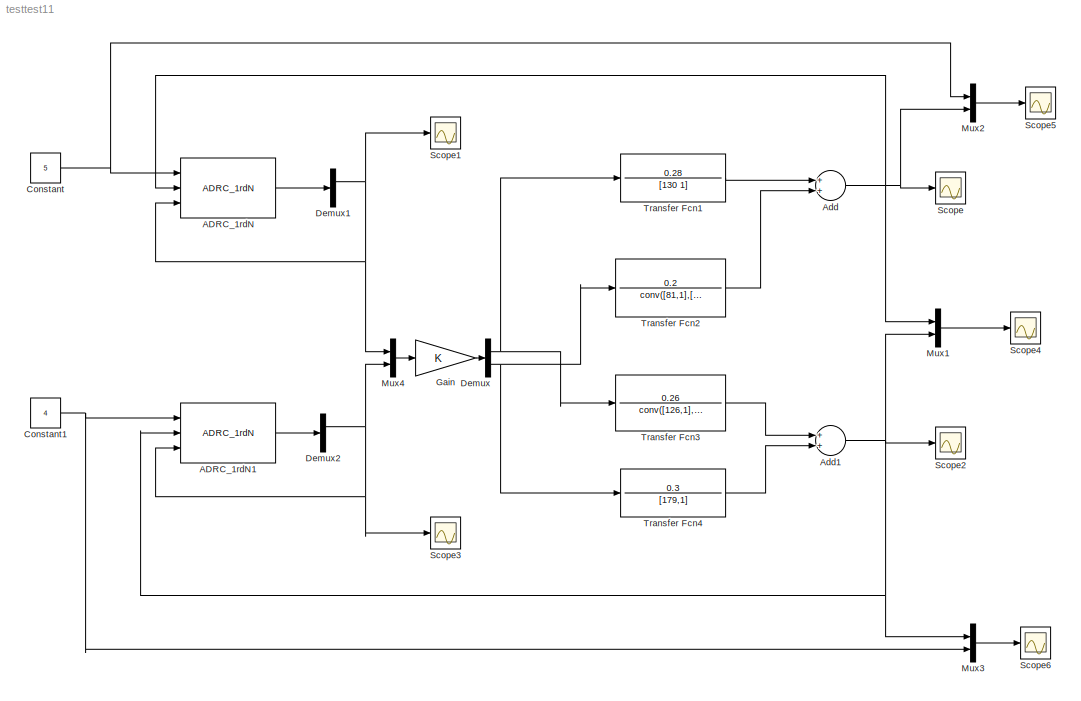
MODEL testtest11
KIND model
BLOCK [Reference] ADRC_1rdN  REF=ADRC/ADRC/ADRC_1rd/ADRC_1rdN
  B01 = 10
  B02 = 200
  FunctionWithSeparateData = off
  GeneratePreprocessorConditionals = off
  Ports = [3, 1]
  RT = 500
  RTWMemSecDataConstants = Inherit from model
  RTWMemSecDataInternal = Inherit from model
  RTWMemSecDataParameters = Inherit from model
  RTWMemSecFuncExecute = Inherit from model
  RTWMemSecFuncInitTerm = Inherit from model
  SID = 33
  ShowPortLabels = FromPortIcon
  SourceBlock = ADRC/ADRC/ADRC_1rd/ADRC_1rdN
  SourceType = Unknown
  SystemSampleTime = -1
  h = 0.1
  r = 0.5
BLOCK [Reference] ADRC_1rdN1  REF=ADRC/ADRC/ADRC_1rd/ADRC_1rdN
  B01 = 10
  B02 = 200
  FunctionWithSeparateData = off
  GeneratePreprocessorConditionals = off
  Ports = [3, 1]
  RT = 500
  RTWMemSecDataConstants = Inherit from model
  RTWMemSecDataInternal = Inherit from model
  RTWMemSecDataParameters = Inherit from model
  RTWMemSecFuncExecute = Inherit from model
  RTWMemSecFuncInitTerm = Inherit from model
  SID = 34
  ShowPortLabels = FromPortIcon
  SourceBlock = ADRC/ADRC/ADRC_1rd/ADRC_1rdN
  SourceType = Unknown
  SystemSampleTime = -1
  h = 0.1
  r = 0.5
BLOCK [Sum] Add
  InputSameDT = off
  OutDataTypeStr = Inherit: Inherit via internal rule
  Ports = [2, 1]
  SID = 28
  SaturateOnIntegerOverflow = off
BLOCK [Sum] Add1
  InputSameDT = off
  OutDataTypeStr = Inherit: Inherit via internal rule
  Ports = [2, 1]
  SID = 30
  SaturateOnIntegerOverflow = off
BLOCK [Constant] Constant
  SID = 3
  Value = 5
BLOCK [Constant] Constant1
  SID = 31
  Value = 4
BLOCK [Demux] Demux
  DisplayOption = bar
  Outputs = 2
  Ports = [1, 2]
  SID = 25
BLOCK [Demux] Demux1
  DisplayOption = bar
  Outputs = 2
  Ports = [1, 2]
  SID = 35
BLOCK [Demux] Demux2
  DisplayOption = bar
  Outputs = 2
  Ports = [1, 2]
  SID = 36
BLOCK [Gain] Gain
  Gain = K
  Multiplication = Matrix(K*u)
  OutDataTypeStr = Inherit: Inherit via internal rule
  ParamDataTypeStr = Inherit: Inherit via internal rule
  SID = 26
  SaturateOnIntegerOverflow = off
BLOCK [Mux] Mux1
  DisplayOption = bar
  Inputs = 2
  Ports = [2, 1]
  SID = 49
BLOCK [Mux] Mux2
  DisplayOption = bar
  Inputs = 2
  Ports = [2, 1]
  SID = 52
BLOCK [Mux] Mux3
  DisplayOption = bar
  Inputs = 2
  Ports = [2, 1]
  SID = 54
BLOCK [Mux] Mux4
  DisplayOption = bar
  Inputs = 2
  Ports = [2, 1]
  SID = 27
BLOCK [Scope] Scope
  DataFormat = Array
  Floating = off
  LimitDataPoints = off
  NumInputPorts = 1
  Ports = [1]
  SID = 4
  SampleTime = 0
  TimeRange = 1000
  YMax = 1.4e+236
  YMin = -2e+235
BLOCK [Scope] Scope1
  DataFormat = Array
  Floating = off
  LimitDataPoints = off
  NumInputPorts = 1
  Ports = [1]
  SID = 5
  SampleTime = 0
  SaveName = ScopeData1
  YMax = 250
  YMin = 0
BLOCK [Scope] Scope2
  DataFormat = Array
  Floating = off
  LimitDataPoints = off
  NumInputPorts = 1
  Ports = [1]
  SID = 29
  SampleTime = 0
  SaveName = ScopeData2
  YMax = 10.25
  YMin = 5.25
BLOCK [Scope] Scope3
  DataFormat = Array
  Floating = off
  LimitDataPoints = off
  NumInputPorts = 1
  Ports = [1]
  SID = 48
  SampleTime = 0
  SaveName = ScopeData3
  YMax = 250
  YMin = 0
BLOCK [Scope] Scope4
  DataFormat = Array
  Floating = off
  LimitDataPoints = off
  NumInputPorts = 1
  Ports = [1]
  SID = 50
  SampleTime = 0
  SaveName = ScopeData4
  TimeRange = 1000
  YMax = 1.4e+236
  YMin = -2e+235
BLOCK [Scope] Scope5
  DataFormat = Array
  Floating = off
  LimitDataPoints = off
  NumInputPorts = 1
  Ports = [1]
  SID = 51
  SampleTime = 0
  SaveName = ScopeData5
  TimeRange = 1000
  YMax = 1.4e+236
  YMin = -2e+235
BLOCK [Scope] Scope6
  DataFormat = Array
  Floating = off
  LimitDataPoints = off
  NumInputPorts = 1
  Ports = [1]
  SID = 53
  SampleTime = 0
  SaveName = ScopeData6
  TimeRange = 1000
  YMax = 1.4e+236
  YMin = -2e+235
BLOCK [TransferFcn] Transfer Fcn1
  Denominator = [130 1]
  Numerator = 0.28
  SID = 43
BLOCK [TransferFcn] Transfer Fcn2
  Denominator = conv([81,1],[12,1])
  Numerator = 0.2
  SID = 47
BLOCK [TransferFcn] Transfer Fcn3
  Denominator = conv([126,1],[11,1])
  Numerator = 0.26
  SID = 45
BLOCK [TransferFcn] Transfer Fcn4
  Denominator = [179,1]
  Numerator = 0.3
  SID = 46
LINE ADRC_1rdN1:1 -> Demux2:1
LINE ADRC_1rdN:1 -> Demux1:1
NET Add1:1 -> ADRC_1rdN1:2, Mux1:2, Mux3:1, Scope2:1
NET Add:1 -> ADRC_1rdN:2, Mux1:1, Mux2:2, Scope:1
NET Constant1:1 -> ADRC_1rdN1:1, Mux3:2
NET Constant:1 -> ADRC_1rdN:1, Mux2:1
NET Demux1:1 -> ADRC_1rdN:3, Mux4:1, Scope1:1
NET Demux2:1 -> ADRC_1rdN1:3, Mux4:2, Scope3:1
NET Demux:1 -> Transfer Fcn1:1, Transfer Fcn3:1
NET Demux:2 -> Transfer Fcn2:1, Transfer Fcn4:1
LINE Gain:1 -> Demux:1
LINE Mux1:1 -> Scope4:1
LINE Mux2:1 -> Scope5:1
LINE Mux3:1 -> Scope6:1
LINE Mux4:1 -> Gain:1
LINE Transfer Fcn1:1 -> Add:1
LINE Transfer Fcn2:1 -> Add:2
LINE Transfer Fcn3:1 -> Add1:1
LINE Transfer Fcn4:1 -> Add1:2
note: NET lines group one-source signal fan-out (src -> all destinations, sorted); 1:1 wires keep LINE
